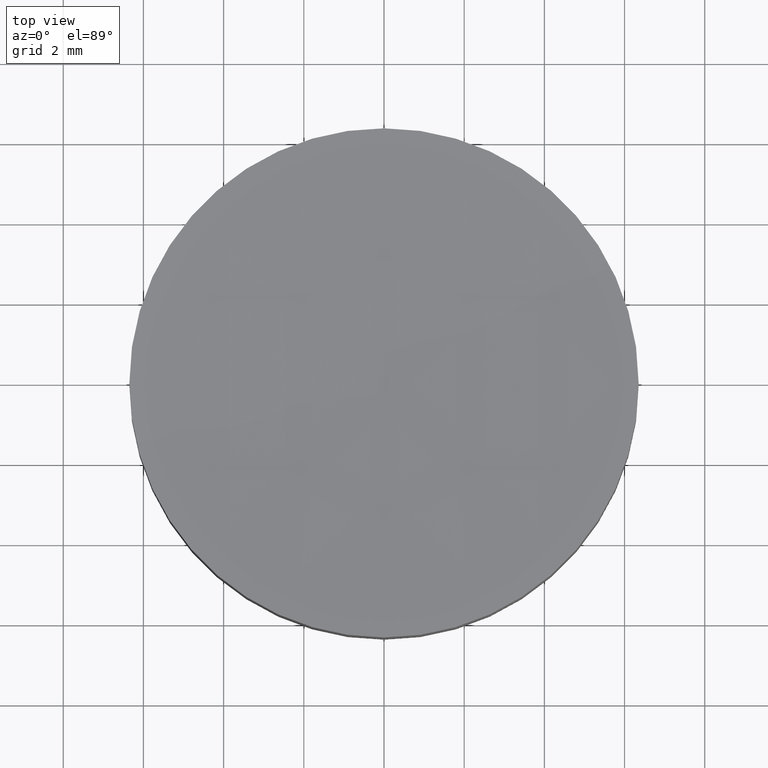
[diagram: clean part render]
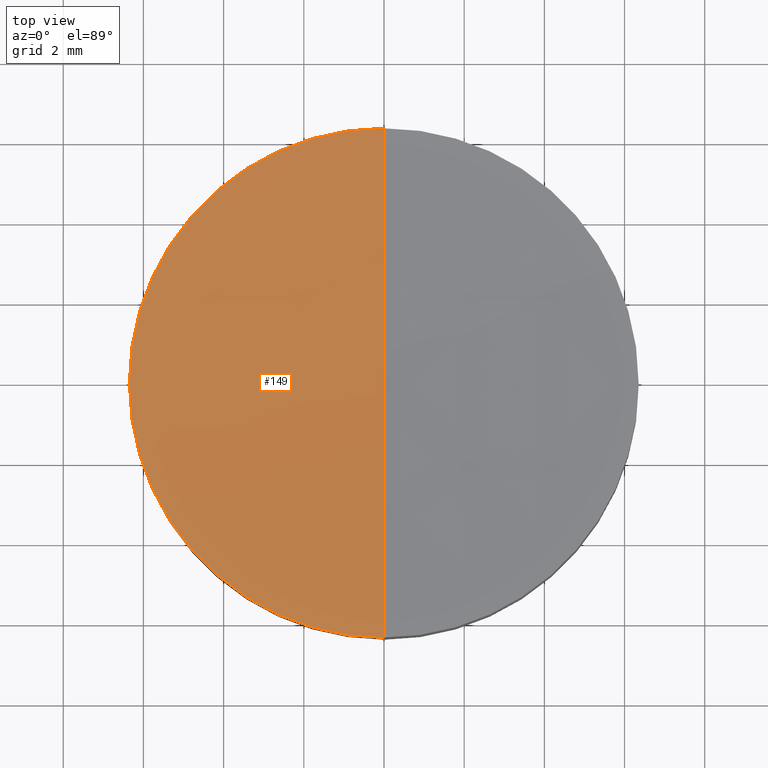
[diagram: same view with one face highlighted and labeled with its STEP entity id]
A machine part, top view. The second image highlights one B-rep face of the part: STEP entity #149.
In plain terms, the highlighted face is a freeform B-spline surface patch.
Its self-contained STEP definition (entity closure, byte-faithful):
#2 = DIRECTION ( 'NONE',  ( -0.0000000000000000000, -0.0000000000000000000, -1.000000000000000000 ) ) ;
#3 = CARTESIAN_POINT ( 'NONE',  ( 4.352355991345239500E-014, -6.426103823646342600, 2.998340447626896200 ) ) ;
#5 = CARTESIAN_POINT ( 'NONE',  ( -4.263746704035849400, 2.144756245206003600, 2.799196622420091700 ) ) ;
#17 = CARTESIAN_POINT ( 'NONE',  ( -6.349999999999999600, 1.998896044546239400E-015, 2.993666058263550100 ) ) ;
#18 = CARTESIAN_POINT ( 'NONE',  ( 4.359811951640958100E-014, -2.144756245206013800, 2.733802514649782200 ) ) ;
#26 = DIRECTION ( 'NONE',  ( 0.0000000000000000000, 1.000000000000000000, -5.327365761157181000E-016 ) ) ;
#40 = FACE_OUTER_BOUND ( 'NONE', #167, .T. ) ;
#41 = CARTESIAN_POINT ( 'NONE',  ( -6.375892942444113300, 6.426103823646331900, 3.193963668608322100 ) ) ;
#43 = CARTESIAN_POINT ( 'NONE',  ( 4.359811951640958100E-014, 2.144756245206003200, 2.733802514649795100 ) ) ;
#66 = EDGE_CURVE ( 'NONE', #260, #95, #171, .T. ) ;
#67 = CARTESIAN_POINT ( 'NONE',  ( -2.132374834590383000, 2.144756245206003600, 2.733802514649794200 ) ) ;
#68 = ORIENTED_EDGE ( 'NONE', *, *, #205, .F. ) ;
#73 = DIRECTION ( 'NONE',  ( -0.0000000000000000000, -0.0000000000000000000, -1.000000000000000000 ) ) ;
#82 = ORIENTED_EDGE ( 'NONE', *, *, #211, .F. ) ;
#83 = CARTESIAN_POINT ( 'NONE',  ( 4.352355991345239500E-014, 6.426103823646331900, 2.998340447626910000 ) ) ;
#86 = CARTESIAN_POINT ( 'NONE',  ( 2.498001805406600200E-016, 1.221245327087670000E-015, 2.993666058263550100 ) ) ;
#93 = CARTESIAN_POINT ( 'NONE',  ( -4.263746704035850300, -2.144756245206013800, 2.799196622420078800 ) ) ;
#95 = VERTEX_POINT ( 'NONE', #17 ) ;
#97 = DIRECTION ( 'NONE',  ( -1.000000000000000000, -1.571998891718550000E-031, -2.818484370769980100E-016 ) ) ;
#99 = CARTESIAN_POINT ( 'NONE',  ( 4.352487738278875200E-014, 6.350000000000076000, 2.993666058263544400 ) ) ;
#101 = CIRCLE ( 'NONE', #252, 104.2000000000000000 ) ;
#105 = ORIENTED_EDGE ( 'NONE', *, *, #66, .F. ) ;
#113 = CARTESIAN_POINT ( 'NONE',  ( 2.498001805406600200E-016, 1.221245327087670000E-015, 2.993666058263550100 ) ) ;
#126 = DIRECTION ( 'NONE',  ( 1.000000000000000000, 0.0000000000000000000, 0.0000000000000000000 ) ) ;
#149 = ADVANCED_FACE ( 'NONE', ( #40 ), #249, .F. ) ;
#165 = DIRECTION ( 'NONE',  ( 1.000000000000000000, -8.881784197001252300E-016, 0.0000000000000000000 ) ) ;
#167 = EDGE_LOOP ( 'NONE', ( #68, #82, #105 ) ) ;
#171 = CIRCLE ( 'NONE', #264, 6.349999999999999600 ) ;
#177 = CARTESIAN_POINT ( 'NONE',  ( 1.421085471520200100E-014, -1.421085471520200100E-014, 107.0000000000000000 ) ) ;
#178 = CARTESIAN_POINT ( 'NONE',  ( -2.132374834590383000, -2.144756245206013800, 2.733802514649780400 ) ) ;
#179 = AXIS2_PLACEMENT_3D ( 'NONE', #113, #73, #165 ) ;
#201 = CARTESIAN_POINT ( 'NONE',  ( -6.375892942444114200, -6.426103823646342600, 3.193963668608308400 ) ) ;
#202 = CIRCLE ( 'NONE', #179, 6.349999999999999600 ) ;
#205 = EDGE_CURVE ( 'NONE', #248, #260, #101, .T. ) ;
#206 = CARTESIAN_POINT ( 'NONE',  ( -6.392110621538247300, 2.144756245206003200, 2.929923321561504100 ) ) ;
#211 = EDGE_CURVE ( 'NONE', #95, #248, #202, .T. ) ;
#237 = CARTESIAN_POINT ( 'NONE',  ( -2.126964701252066700, -6.426103823646344400, 2.998340447626896200 ) ) ;
#248 = VERTEX_POINT ( 'NONE', #99 ) ;
#249 =( BOUNDED_SURFACE ( )  B_SPLINE_SURFACE ( 3, 3, ( 
 ( #83, #277, #287, #41 ),
 ( #43, #67, #5, #206 ),
 ( #18, #178, #93, #285 ),
 ( #3, #237, #282, #201 ) ),
 .UNSPECIFIED., .F., .F., .T. ) 
 B_SPLINE_SURFACE_WITH_KNOTS ( ( 4, 4 ),
 ( 4, 4 ),
 ( 0.0000000000000000000, 1.000000000000000000 ),
 ( 0.0000000000000000000, 1.000000000000000000 ),
 .UNSPECIFIED. ) 
 GEOMETRIC_REPRESENTATION_ITEM ( )  RATIONAL_B_SPLINE_SURFACE ( (
 ( 1.000000000000000000, 0.9996864325074911200, 0.9996864325074911200, 1.000000000000000000),
 ( 0.9987310272064817700, 0.9984178576225898300, 0.9984178576225898300, 0.9987310272064817700),
 ( 0.9987310272064817700, 0.9984178576225898300, 0.9984178576225898300, 0.9987310272064817700),
 ( 1.000000000000000000, 0.9996864325074911200, 0.9996864325074911200, 1.000000000000000000) ) ) 
 REPRESENTATION_ITEM ( '' )  SURFACE ( )  );
#252 = AXIS2_PLACEMENT_3D ( 'NONE', #177, #97, #26 ) ;
#260 = VERTEX_POINT ( 'NONE', #262 ) ;
#262 = CARTESIAN_POINT ( 'NONE',  ( 4.352487738278875200E-014, -6.350000000000089400, 2.993666058263544400 ) ) ;
#264 = AXIS2_PLACEMENT_3D ( 'NONE', #86, #2, #126 ) ;
#277 = CARTESIAN_POINT ( 'NONE',  ( -2.126964701252066700, 6.426103823646332800, 2.998340447626910000 ) ) ;
#282 = CARTESIAN_POINT ( 'NONE',  ( -4.252928982022136300, -6.426103823646344400, 3.063568641395190800 ) ) ;
#285 = CARTESIAN_POINT ( 'NONE',  ( -6.392110621538247300, -2.144756245206013800, 2.929923321561491300 ) ) ;
#287 = CARTESIAN_POINT ( 'NONE',  ( -4.252928982022135400, 6.426103823646332800, 3.063568641395205000 ) ) ;